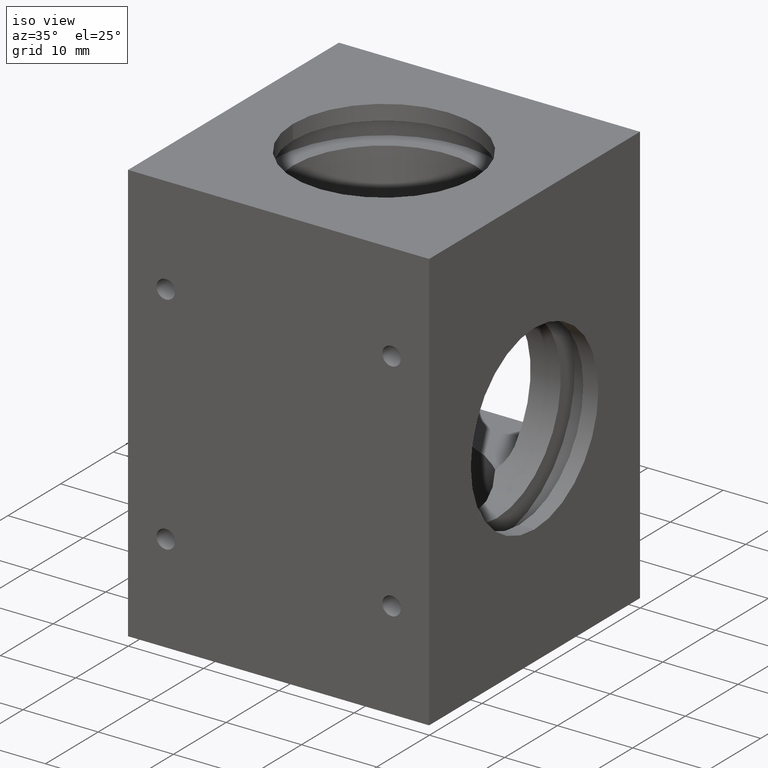
[diagram: clean part render]
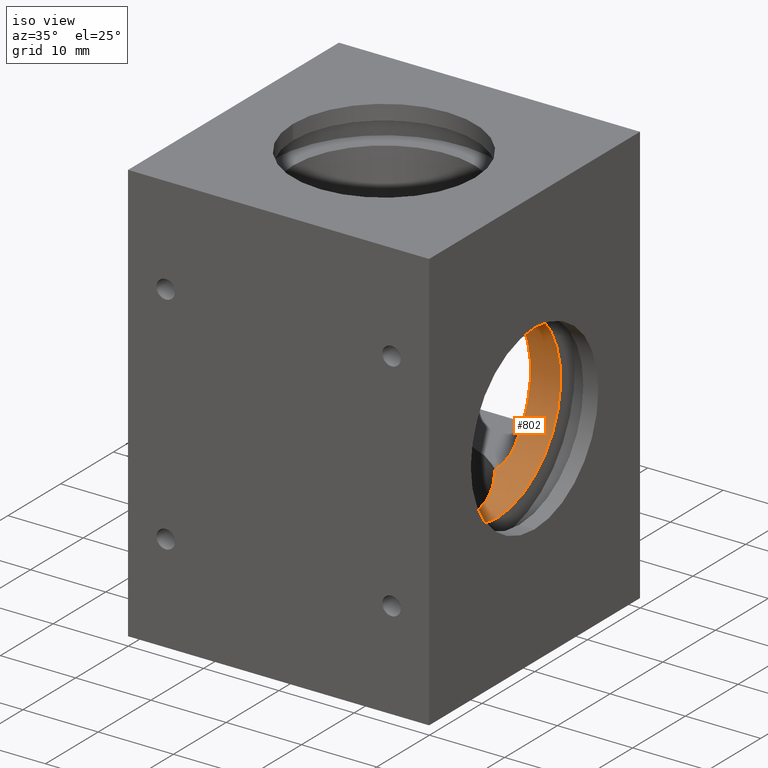
[diagram: same view with one face highlighted and labeled with its STEP entity id]
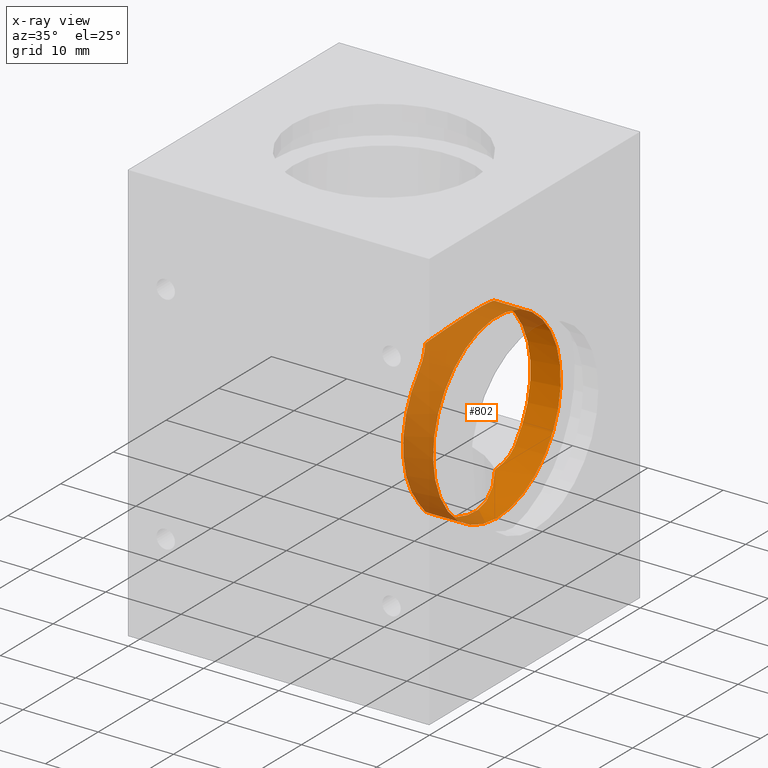
[diagram: x-ray of the same camera — body ghosted, the highlighted face saturated]
A machine part, iso view. The second image highlights one B-rep face of the part: STEP entity #802.
The next image is the same camera in x-ray: the body ghosted, the highlighted face saturated — about 55% of this face is hidden behind the body in this view.
In plain terms, the highlighted cylindrical surface (bore or boss wall) has radius 12.1 mm, axis along (-1, 0, 0).
Its self-contained STEP definition (entity closure, byte-faithful):
#14=ELLIPSE('',#896,17.1119841047144,12.1);
#17=ELLIPSE('',#901,17.1119841047144,12.1);
#18=B_SPLINE_CURVE_WITH_KNOTS('',3,(#1231,#1232,#1233,#1234,#1235,#1236),
 .UNSPECIFIED.,.F.,.F.,(4,2,4),(-0.611864740856436,-0.430574594448887,-0.289504826090937),
 .UNSPECIFIED.);
#21=B_SPLINE_CURVE_WITH_KNOTS('',3,(#1259,#1260,#1261,#1262,#1263,#1264),
 .UNSPECIFIED.,.F.,.F.,(4,2,4),(1.40247893311939,1.54354870147734,1.72483884788488),
 .UNSPECIFIED.);
#32=B_SPLINE_CURVE_WITH_KNOTS('',3,(#1427,#1428,#1429,#1430,#1431,#1432),
 .UNSPECIFIED.,.F.,.F.,(4,2,4),(0.501109366172013,0.682399512579562,0.823469280937512),
 .UNSPECIFIED.);
#33=B_SPLINE_CURVE_WITH_KNOTS('',3,(#1435,#1436,#1437,#1438,#1439,#1440),
 .UNSPECIFIED.,.F.,.F.,(4,2,4),(0.289504826090937,0.430574594448887,0.611864740856436),
 .UNSPECIFIED.);
#73=CYLINDRICAL_SURFACE('',#908,12.1);
#111=FACE_BOUND('',#276,.T.);
#132=CIRCLE('',#853,12.1);
#151=CIRCLE('',#889,12.1);
#159=CIRCLE('',#909,12.1);
#196=FACE_OUTER_BOUND('',#275,.T.);
#275=EDGE_LOOP('',(#669));
#276=EDGE_LOOP('',(#670,#671,#672,#673,#674,#675,#676,#677));
#395=VERTEX_POINT('',#1228);
#396=VERTEX_POINT('',#1230);
#398=VERTEX_POINT('',#1246);
#400=VERTEX_POINT('',#1252);
#423=VERTEX_POINT('',#1326);
#428=VERTEX_POINT('',#1338);
#434=VERTEX_POINT('',#1373);
#441=VERTEX_POINT('',#1426);
#442=VERTEX_POINT('',#1433);
#472=EDGE_CURVE('',#395,#396,#18,.T.);
#476=EDGE_CURVE('',#398,#395,#132,.T.);
#479=EDGE_CURVE('',#400,#398,#21,.T.);
#503=EDGE_CURVE('',#423,#423,#151,.T.);
#508=EDGE_CURVE('',#400,#428,#14,.T.);
#515=EDGE_CURVE('',#434,#396,#17,.T.);
#527=EDGE_CURVE('',#441,#428,#32,.T.);
#528=EDGE_CURVE('',#442,#441,#159,.T.);
#529=EDGE_CURVE('',#434,#442,#33,.T.);
#669=ORIENTED_EDGE('',*,*,#503,.T.);
#670=ORIENTED_EDGE('',*,*,#515,.T.);
#671=ORIENTED_EDGE('',*,*,#472,.F.);
#672=ORIENTED_EDGE('',*,*,#476,.F.);
#673=ORIENTED_EDGE('',*,*,#479,.F.);
#674=ORIENTED_EDGE('',*,*,#508,.T.);
#675=ORIENTED_EDGE('',*,*,#527,.F.);
#676=ORIENTED_EDGE('',*,*,#528,.F.);
#677=ORIENTED_EDGE('',*,*,#529,.F.);
#802=ADVANCED_FACE('',(#196,#111),#73,.F.);
#853=AXIS2_PLACEMENT_3D('',#1248,#997,#998);
#889=AXIS2_PLACEMENT_3D('',#1327,#1075,#1076);
#896=AXIS2_PLACEMENT_3D('',#1345,#1089,#1090);
#901=AXIS2_PLACEMENT_3D('',#1374,#1099,#1100);
#908=AXIS2_PLACEMENT_3D('',#1425,#1115,#1116);
#909=AXIS2_PLACEMENT_3D('',#1434,#1117,#1118);
#997=DIRECTION('center_axis',(1.,0.,0.));
#998=DIRECTION('ref_axis',(0.,0.,1.));
#1075=DIRECTION('center_axis',(1.,0.,0.));
#1076=DIRECTION('ref_axis',(0.,0.,1.));
#1089=DIRECTION('center_axis',(-0.707106781186547,0.,0.707106781186548));
#1090=DIRECTION('ref_axis',(0.707106781186548,0.,0.707106781186547));
#1099=DIRECTION('center_axis',(-0.707106781186548,0.,-0.707106781186547));
#1100=DIRECTION('ref_axis',(0.707106781186547,0.,-0.707106781186548));
#1115=DIRECTION('center_axis',(-1.,0.,0.));
#1116=DIRECTION('ref_axis',(0.,0.,1.));
#1117=DIRECTION('center_axis',(1.,0.,0.));
#1118=DIRECTION('ref_axis',(0.,0.,1.));
#1228=CARTESIAN_POINT('',(11.,20.8720046265709,-8.));
#1230=CARTESIAN_POINT('',(10.1213203435468,23.3190970070102,-10.1213203436023));
#1231=CARTESIAN_POINT('Ctrl Pts',(11.,20.8720046265709,-8.));
#1232=CARTESIAN_POINT('Ctrl Pts',(11.,21.2715421393148,-8.45337496152508));
#1233=CARTESIAN_POINT('Ctrl Pts',(10.8938873687434,21.7347848489392,-8.90538078693964));
#1234=CARTESIAN_POINT('Ctrl Pts',(10.5535987971217,22.5836296255736,-9.61145401399705));
#1235=CARTESIAN_POINT('Ctrl Pts',(10.3543776071874,22.9633615624881,-9.88826307994125));
#1236=CARTESIAN_POINT('Ctrl Pts',(10.1213203435169,23.3190970070298,-10.1213203436023));
#1246=CARTESIAN_POINT('',(11.,20.8720046265709,8.));
#1248=CARTESIAN_POINT('Origin',(11.,29.95,0.));
#1252=CARTESIAN_POINT('',(10.1213203435468,23.3190970070102,10.1213203436023));
#1259=CARTESIAN_POINT('Ctrl Pts',(10.1213203435169,23.3190970070298,10.1213203436023));
#1260=CARTESIAN_POINT('Ctrl Pts',(10.3543776071874,22.9633615624881,9.88826307994125));
#1261=CARTESIAN_POINT('Ctrl Pts',(10.5535987971217,22.5836296255736,9.61145401399705));
#1262=CARTESIAN_POINT('Ctrl Pts',(10.8938873687434,21.7347848489392,8.90538078693964));
#1263=CARTESIAN_POINT('Ctrl Pts',(11.,21.2715421393148,8.45337496152508));
#1264=CARTESIAN_POINT('Ctrl Pts',(11.,20.8720046265709,8.));
#1326=CARTESIAN_POINT('',(15.,29.95,-12.1));
#1327=CARTESIAN_POINT('Origin',(15.,29.95,0.));
#1338=CARTESIAN_POINT('',(10.1213203435468,36.5809029929898,10.1213203436023));
#1345=CARTESIAN_POINT('Origin',(3.80647894157196E-15,29.95,0.));
#1373=CARTESIAN_POINT('',(10.1213203435468,36.5809029929898,-10.1213203436023));
#1374=CARTESIAN_POINT('Origin',(3.80647894157196E-15,29.95,0.));
#1425=CARTESIAN_POINT('Origin',(20.,29.95,0.));
#1426=CARTESIAN_POINT('',(11.,39.0279953734291,8.));
#1427=CARTESIAN_POINT('Ctrl Pts',(11.,39.0279953734291,8.));
#1428=CARTESIAN_POINT('Ctrl Pts',(11.,38.6284578606852,8.45337496152507));
#1429=CARTESIAN_POINT('Ctrl Pts',(10.8938873687434,38.1652151510608,8.90538078693964));
#1430=CARTESIAN_POINT('Ctrl Pts',(10.5535987971217,37.3163703744264,9.61145401399705));
#1431=CARTESIAN_POINT('Ctrl Pts',(10.3543776071874,36.9366384375119,9.88826307994124));
#1432=CARTESIAN_POINT('Ctrl Pts',(10.1213203435169,36.5809029929702,10.1213203436023));
#1433=CARTESIAN_POINT('',(11.,39.0279953734291,-8.));
#1434=CARTESIAN_POINT('Origin',(11.,29.95,0.));
#1435=CARTESIAN_POINT('Ctrl Pts',(10.1213203435169,36.5809029929702,-10.1213203436023));
#1436=CARTESIAN_POINT('Ctrl Pts',(10.3543776071874,36.9366384375119,-9.88826307994125));
#1437=CARTESIAN_POINT('Ctrl Pts',(10.5535987971217,37.3163703744264,-9.61145401399705));
#1438=CARTESIAN_POINT('Ctrl Pts',(10.8938873687434,38.1652151510608,-8.90538078693964));
#1439=CARTESIAN_POINT('Ctrl Pts',(11.,38.6284578606852,-8.45337496152507));
#1440=CARTESIAN_POINT('Ctrl Pts',(11.,39.0279953734291,-8.));